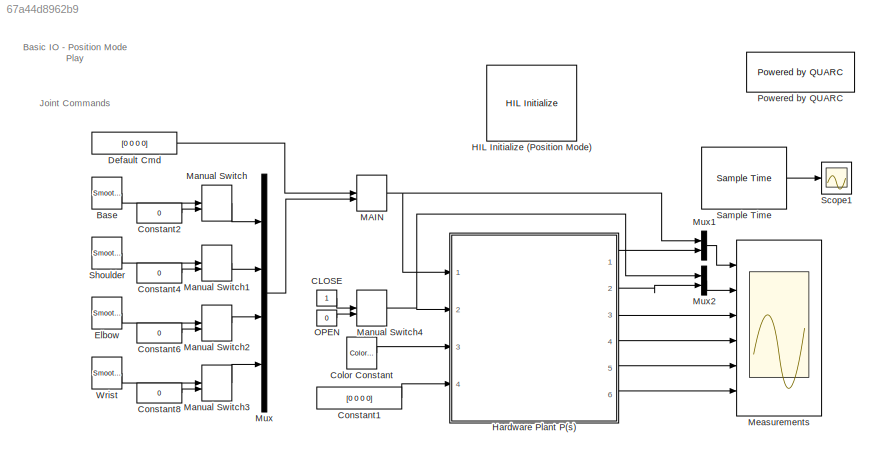
MODEL slx_67a44d8962b9
KIND model
CONFIG AbsTol = auto
CONFIG EnableMultiTasking = on
CONFIG FixedStep = 1/500
CONFIG MaxStep = auto
CONFIG MinStep = auto
CONFIG RelTol = 1e-3
CONFIG SampleTimeConstraint = Unconstrained
CONFIG SolverName = ode4
CONFIG StartTime = 0.0
CONFIG StopTime = inf
BLOCK [Constant]  OPEN
  Value = 0
BLOCK [Reference] Base  REF=quarc_library/Sources/Signals/Smooth Signal
Generator
  Ports = [0, 1]
  SourceBlock = quarc_library/Sources/Signals/Smooth Signal\nGenerator
  SourceProductName = QUARC Targets
  SourceType = Smooth Signal Generator
BLOCK [Constant] CLOSE 
  NameLocation = top
BLOCK [Reference] Color Constant  REF=quarc_library/Sources/Signals/Color Constant
  Ports = [0, 1]
  SourceBlock = quarc_library/Sources/Signals/Color Constant
  SourceProductName = QUARC Targets
  SourceType = Color Constant
BLOCK [Constant] Constant1
  Value = [0 0 0 0]
BLOCK [Constant] Constant2
  Value = 0
BLOCK [Constant] Constant4
  Value = 0
BLOCK [Constant] Constant6
  Value = 0
BLOCK [Constant] Constant8
  Value = 0
BLOCK [Constant] Default Cmd
  Value = [0 0 0 0]
BLOCK [Reference] Elbow  REF=quarc_library/Sources/Signals/Smooth Signal
Generator
  Ports = [0, 1]
  SourceBlock = quarc_library/Sources/Signals/Smooth Signal\nGenerator
  SourceProductName = QUARC Targets
  SourceType = Smooth Signal Generator
BLOCK [Reference] HIL Initialize (Position Mode)  REF=quarc_library/Data Acquisition/Generic/Configuration/HIL Initialize
  AttributesFormatString = %<object_name> (%<board_type>-%<board_number>)
  Ports = []
  SourceBlock = quarc_library/Data Acquisition/Generic/Configuration/HIL Initialize
  SourceProductName = QUARC Targets
  SourceType = HIL Initialize
  UserDataPersistent = on
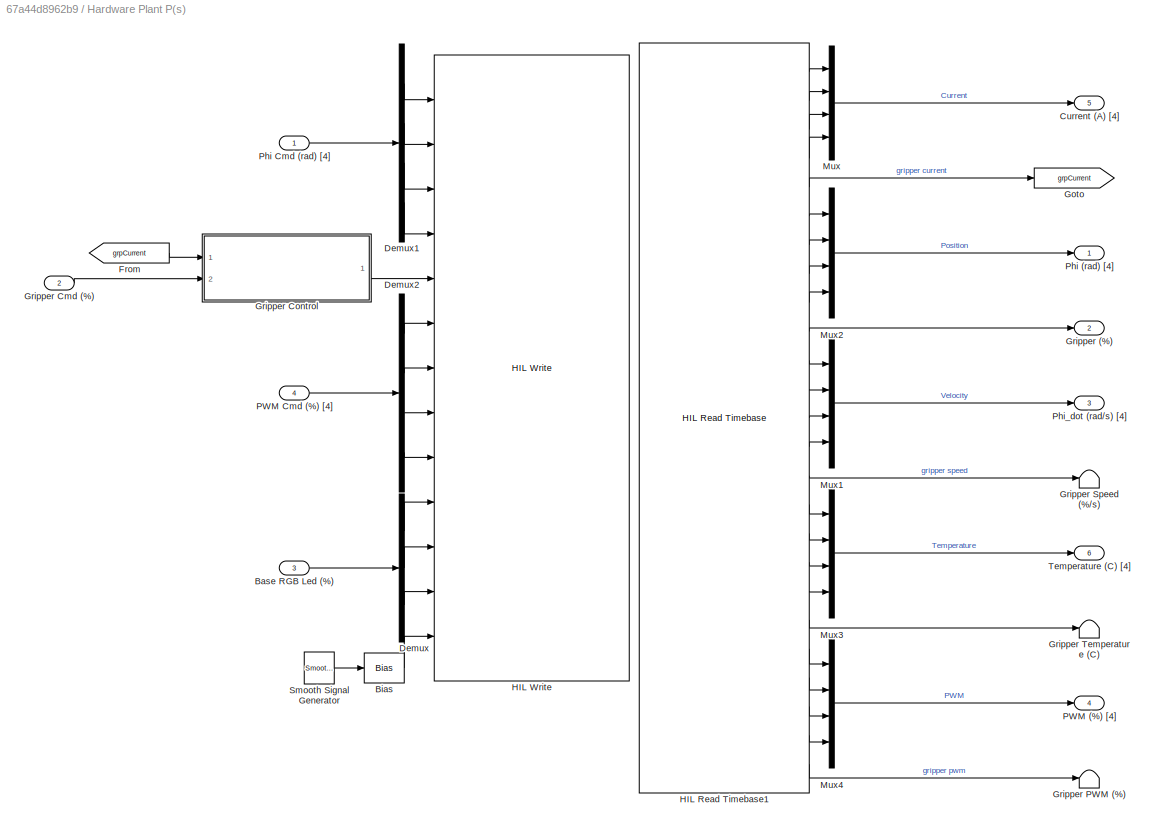
BLOCK [SubSystem] Hardware Plant P(s)
  Permissions = NoReadOrWrite
  Ports = [4, 6]
BLOCK [Inport] Hardware Plant P(s)/Base RGB Led (%)
  Port = 3
BLOCK [Bias] Hardware Plant P(s)/Bias
  Bias = 0.5
  SaturateOnIntegerOverflow = off
BLOCK [Outport] Hardware Plant P(s)/Current (A) [4]
  Port = 5
  VectorParamsAs1DForOutWhenUnconnected = off
BLOCK [Demux] Hardware Plant P(s)/Demux
  Outputs = 3
  Ports = [1, 3]
BLOCK [Demux] Hardware Plant P(s)/Demux1
  Ports = [1, 4]
BLOCK [Demux] Hardware Plant P(s)/Demux2
  Ports = [1, 4]
BLOCK [From] Hardware Plant P(s)/From
  GotoTag = grpCurrent
BLOCK [Goto] Hardware Plant P(s)/Goto
  GotoTag = grpCurrent
BLOCK [Outport] Hardware Plant P(s)/Gripper (%)
  Port = 2
  VectorParamsAs1DForOutWhenUnconnected = off
BLOCK [Inport] Hardware Plant P(s)/Gripper Cmd (%)
  Port = 2
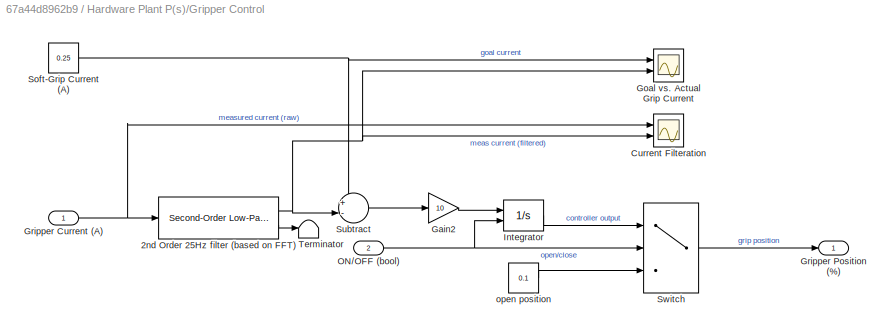
BLOCK [SubSystem] Hardware Plant P(s)/Gripper Control
  Ports = [2, 1]
BLOCK [Reference] Hardware Plant P(s)/Gripper Control/2nd Order 25Hz filter (based on FFT)  REF=quarc_library/Continuous/Second-Order
Low-Pass Filter
  Ports = [1, 2]
  SourceBlock = quarc_library/Continuous/Second-Order\nLow-Pass Filter
  SourceProductName = QUARC Targets
  SourceType = Second-Order Low-Pass Filter
BLOCK [Scope] Hardware Plant P(s)/Gripper Control/Current Filteration
  Floating = off
  NameLocation = top
  NumInputPorts = 2
  Ports = [2]
  ScopeSpecificationString = Simulink.scopes.TimeScopeBlockCfg('CurrentConfiguration', extmgr.ConfigurationSet(extmgr.Configuration('Core','General UI',true),extmgr.Configuration('Core','Source UI',true),extmgr.Configuration('Sources','WiredSimulink',true,'DataLoggingVariableName','ScopeData5'),extmgr.Configuration('Visuals','Time Domain',true,'SerializedDisplays',{struct('MinYLimReal','-0.01447','MaxYLimReal','0.62651','YLab...<+1429ch>
BLOCK [Gain] Hardware Plant P(s)/Gripper Control/Gain2
  Gain = 10
BLOCK [Scope] Hardware Plant P(s)/Gripper Control/Goal vs. Actual Grip Current
  Floating = off
  NameLocation = top
  NumInputPorts = 2
  Ports = [2]
  ScopeSpecificationString = Simulink.scopes.TimeScopeBlockCfg('CurrentConfiguration', extmgr.ConfigurationSet(extmgr.Configuration('Core','General UI',true),extmgr.Configuration('Core','Source UI',true),extmgr.Configuration('Sources','WiredSimulink',true,'DataLoggingVariableName','ScopeData4'),extmgr.Configuration('Visuals','Time Domain',true,'SerializedDisplays',{struct('MinYLimReal','0.00229','MaxYLimReal','0.27702','YLabe...<+1426ch>
BLOCK [Inport] Hardware Plant P(s)/Gripper Control/Gripper Current (A)
BLOCK [Outport] Hardware Plant P(s)/Gripper Control/Gripper Position (%)
  VectorParamsAs1DForOutWhenUnconnected = off
BLOCK [Integrator] Hardware Plant P(s)/Gripper Control/Integrator
  ExternalReset = either
  InitialCondition = 0.1
  LimitOutput = on
  LowerSaturationLimit = 0.1
  Ports = [2, 1]
  UpperSaturationLimit = 0.9
BLOCK [Inport] Hardware Plant P(s)/Gripper Control/ON//OFF (bool)
  Port = 2
BLOCK [Constant] Hardware Plant P(s)/Gripper Control/Soft-Grip Current (A)
  Value = 0.25
BLOCK [Sum] Hardware Plant P(s)/Gripper Control/Subtract
  Inputs = +-|
  Ports = [2, 1]
BLOCK [Switch] Hardware Plant P(s)/Gripper Control/Switch
  Criteria = u2 > Threshold
  InputSameDT = off
  SaturateOnIntegerOverflow = off
BLOCK [Terminator] Hardware Plant P(s)/Gripper Control/Terminator
BLOCK [Constant] Hardware Plant P(s)/Gripper Control/open position
  Value = 0.1
BLOCK [Terminator] Hardware Plant P(s)/Gripper PWM (%)
BLOCK [Terminator] Hardware Plant P(s)/Gripper Speed (%//s)
BLOCK [Terminator] Hardware Plant P(s)/Gripper Temperature (C)
BLOCK [Reference] Hardware Plant P(s)/HIL Read Timebase1  REF=quarc_library/Data Acquisition/Generic/Timebases/HIL Read
Timebase
  AttributesFormatString = (%<object_name>)
  Ports = [0, 25]
  SourceBlock = quarc_library/Data Acquisition/Generic/Timebases/HIL Read\nTimebase
  SourceProductName = QUARC Targets
  SourceType = HIL Read Timebase
  UserDataPersistent = on
BLOCK [Reference] Hardware Plant P(s)/HIL Write  REF=quarc_library/Data Acquisition/Generic/Immediate I//O/HIL Write
  AttributesFormatString = (%<object_name>)
  Ports = [13]
  SourceBlock = quarc_library/Data Acquisition/Generic/Immediate I//O/HIL Write
  SourceProductName = QUARC Targets
  SourceType = HIL Write
  UserDataPersistent = on
BLOCK [Mux] Hardware Plant P(s)/Mux
  DisplayOption = bar
  Ports = [4, 1]
BLOCK [Mux] Hardware Plant P(s)/Mux1
  DisplayOption = bar
  Ports = [4, 1]
BLOCK [Mux] Hardware Plant P(s)/Mux2
  DisplayOption = bar
  Ports = [4, 1]
BLOCK [Mux] Hardware Plant P(s)/Mux3
  DisplayOption = bar
  Ports = [4, 1]
BLOCK [Mux] Hardware Plant P(s)/Mux4
  DisplayOption = bar
  Ports = [4, 1]
BLOCK [Outport] Hardware Plant P(s)/PWM (%) [4]
  Port = 4
  VectorParamsAs1DForOutWhenUnconnected = off
BLOCK [Inport] Hardware Plant P(s)/PWM Cmd (%) [4]
  Port = 4
BLOCK [Outport] Hardware Plant P(s)/Phi (rad) [4]
  VectorParamsAs1DForOutWhenUnconnected = off
BLOCK [Inport] Hardware Plant P(s)/Phi Cmd (rad) [4]
BLOCK [Outport] Hardware Plant P(s)/Phi_dot (rad//s) [4]
  Port = 3
  VectorParamsAs1DForOutWhenUnconnected = off
BLOCK [Reference] Hardware Plant P(s)/Smooth Signal Generator  REF=quarc_library/Sources/Signals/Smooth Signal
Generator
  Ports = [0, 1]
  SourceBlock = quarc_library/Sources/Signals/Smooth Signal\nGenerator
  SourceProductName = QUARC Targets
  SourceType = Smooth Signal Generator
BLOCK [Outport] Hardware Plant P(s)/Temperature (C) [4]
  Port = 6
  VectorParamsAs1DForOutWhenUnconnected = off
BLOCK [ManualSwitch] MAIN
BLOCK [ManualSwitch] Manual Switch
  CurrentSetting = 0
BLOCK [ManualSwitch] Manual Switch1
  CurrentSetting = 0
BLOCK [ManualSwitch] Manual Switch2
  CurrentSetting = 0
BLOCK [ManualSwitch] Manual Switch3
  CurrentSetting = 0
BLOCK [ManualSwitch] Manual Switch4
  CurrentSetting = 0
BLOCK [Scope] Measurements
  Floating = off
  NumInputPorts = 6
  Ports = [6]
  ScopeSpecificationString = Simulink.scopes.TimeScopeBlockCfg('CurrentConfiguration', extmgr.ConfigurationSet(extmgr.Configuration('Core','General UI',true),extmgr.Configuration('Core','Source UI',true),extmgr.Configuration('Sources','WiredSimulink',true,'DataLoggingVariableName','ScopeData1'),extmgr.Configuration('Visuals','Time Domain',true,'SerializedDisplays',{struct('MinYLimReal','-0.01419','MaxYLimReal','0.07403','YLab...<+5322ch>
BLOCK [Mux] Mux
  DisplayOption = bar
  Ports = [4, 1]
BLOCK [Mux] Mux1
  DisplayOption = bar
  Inputs = 2
  Ports = [2, 1]
BLOCK [Mux] Mux2
  DisplayOption = bar
  Inputs = 2
  Ports = [2, 1]
BLOCK [Reference] Powered by QUARC  REF=quarc_library/Logos/Powered by QUARC
  Ports = []
  SourceBlock = quarc_library/Logos/Powered by QUARC
  SourceProductName = QUARC Targets
  SourceType = Powered by QUARC
BLOCK [Reference] Sample Time  REF=quarc_library/Sources/Time/Sample Time
  Ports = [0, 1]
  Priority = -99
  SourceBlock = quarc_library/Sources/Time/Sample Time
  SourceProductName = QUARC Targets
  SourceType = Sample Time
BLOCK [Scope] Scope1
  Floating = off
  NumInputPorts = 1
  Ports = [1]
  ScopeSpecificationString = Simulink.scopes.TimeScopeBlockCfg('CurrentConfiguration', extmgr.ConfigurationSet(extmgr.Configuration('Core','General UI',true),extmgr.Configuration('Core','Source UI',true),extmgr.Configuration('Sources','WiredSimulink',true,'DataLoggingVariableName','ScopeData1'),extmgr.Configuration('Visuals','Time Domain',true,'SerializedDisplays',{struct('MinYLimReal','0.00125','MaxYLimReal','0.00274','YLabe...<+1395ch>
BLOCK [Reference] Shoulder  REF=quarc_library/Sources/Signals/Smooth Signal
Generator
  Ports = [0, 1]
  SourceBlock = quarc_library/Sources/Signals/Smooth Signal\nGenerator
  SourceProductName = QUARC Targets
  SourceType = Smooth Signal Generator
BLOCK [Reference] Wrist  REF=quarc_library/Sources/Signals/Smooth Signal
Generator
  Ports = [0, 1]
  SourceBlock = quarc_library/Sources/Signals/Smooth Signal\nGenerator
  SourceProductName = QUARC Targets
  SourceType = Smooth Signal Generator
ANNOTATION (root): Basic IO - Position Mode Play
ANNOTATION (root): Joint Commands
LINE  OPEN:1 -> Manual Switch4:2
LINE Base:1 -> Manual Switch:1
LINE CLOSE :1 -> Manual Switch4:1
LINE Color Constant:1 -> Hardware Plant P(s):3
LINE Constant1:1 -> Hardware Plant P(s):4
LINE Constant2:1 -> Manual Switch:2
LINE Constant4:1 -> Manual Switch1:2
LINE Constant6:1 -> Manual Switch2:2
LINE Constant8:1 -> Manual Switch3:2
LINE Default Cmd:1 -> MAIN:1
LINE Elbow:1 -> Manual Switch2:1
LINE Hardware Plant P(s)/Base RGB Led (%):1 -> Hardware Plant P(s)/Demux:1
LINE Hardware Plant P(s)/Bias:1 -> Hardware Plant P(s)/HIL Write:13
LINE Hardware Plant P(s)/Demux1:1 -> Hardware Plant P(s)/HIL Write:1
LINE Hardware Plant P(s)/Demux1:2 -> Hardware Plant P(s)/HIL Write:2
LINE Hardware Plant P(s)/Demux1:3 -> Hardware Plant P(s)/HIL Write:3
LINE Hardware Plant P(s)/Demux1:4 -> Hardware Plant P(s)/HIL Write:4
LINE Hardware Plant P(s)/Demux2:1 -> Hardware Plant P(s)/HIL Write:6
LINE Hardware Plant P(s)/Demux2:2 -> Hardware Plant P(s)/HIL Write:7
LINE Hardware Plant P(s)/Demux2:3 -> Hardware Plant P(s)/HIL Write:8
LINE Hardware Plant P(s)/Demux2:4 -> Hardware Plant P(s)/HIL Write:9
LINE Hardware Plant P(s)/Demux:1 -> Hardware Plant P(s)/HIL Write:10
LINE Hardware Plant P(s)/Demux:2 -> Hardware Plant P(s)/HIL Write:11
LINE Hardware Plant P(s)/Demux:3 -> Hardware Plant P(s)/HIL Write:12
LINE Hardware Plant P(s)/From:1 -> Hardware Plant P(s)/Gripper Control:1
LINE Hardware Plant P(s)/Gripper Cmd (%):1 -> Hardware Plant P(s)/Gripper Control:2
NET Hardware Plant P(s)/Gripper Control/2nd Order 25Hz filter (based on FFT):1 -> Hardware Plant P(s)/Gripper Control/Current Filteration:2, Hardware Plant P(s)/Gripper Control/Goal vs. Actual Grip Current:2, Hardware Plant P(s)/Gripper Control/Subtract:2
LINE Hardware Plant P(s)/Gripper Control/2nd Order 25Hz filter (based on FFT):2 -> Hardware Plant P(s)/Gripper Control/Terminator:1
LINE Hardware Plant P(s)/Gripper Control/Gain2:1 -> Hardware Plant P(s)/Gripper Control/Integrator:1
NET Hardware Plant P(s)/Gripper Control/Gripper Current (A):1 -> Hardware Plant P(s)/Gripper Control/2nd Order 25Hz filter (based on FFT):1, Hardware Plant P(s)/Gripper Control/Current Filteration:1
LINE Hardware Plant P(s)/Gripper Control/Integrator:1 -> Hardware Plant P(s)/Gripper Control/Switch:1
NET Hardware Plant P(s)/Gripper Control/ON//OFF (bool):1 -> Hardware Plant P(s)/Gripper Control/Integrator:2, Hardware Plant P(s)/Gripper Control/Switch:2
NET Hardware Plant P(s)/Gripper Control/Soft-Grip Current (A):1 -> Hardware Plant P(s)/Gripper Control/Goal vs. Actual Grip Current:1, Hardware Plant P(s)/Gripper Control/Subtract:1
LINE Hardware Plant P(s)/Gripper Control/Subtract:1 -> Hardware Plant P(s)/Gripper Control/Gain2:1
LINE Hardware Plant P(s)/Gripper Control/Switch:1 -> Hardware Plant P(s)/Gripper Control/Gripper Position (%):1
LINE Hardware Plant P(s)/Gripper Control/open position:1 -> Hardware Plant P(s)/Gripper Control/Switch:3
LINE Hardware Plant P(s)/Gripper Control:1 -> Hardware Plant P(s)/HIL Write:5
LINE Hardware Plant P(s)/HIL Read Timebase1:1 -> Hardware Plant P(s)/Mux:1
LINE Hardware Plant P(s)/HIL Read Timebase1:10 -> Hardware Plant P(s)/Gripper (%):1
LINE Hardware Plant P(s)/HIL Read Timebase1:11 -> Hardware Plant P(s)/Mux1:1
LINE Hardware Plant P(s)/HIL Read Timebase1:12 -> Hardware Plant P(s)/Mux1:2
LINE Hardware Plant P(s)/HIL Read Timebase1:13 -> Hardware Plant P(s)/Mux1:3
LINE Hardware Plant P(s)/HIL Read Timebase1:14 -> Hardware Plant P(s)/Mux1:4
LINE Hardware Plant P(s)/HIL Read Timebase1:15 -> Hardware Plant P(s)/Gripper Speed (%//s):1
LINE Hardware Plant P(s)/HIL Read Timebase1:16 -> Hardware Plant P(s)/Mux3:1
LINE Hardware Plant P(s)/HIL Read Timebase1:17 -> Hardware Plant P(s)/Mux3:2
LINE Hardware Plant P(s)/HIL Read Timebase1:18 -> Hardware Plant P(s)/Mux3:3
LINE Hardware Plant P(s)/HIL Read Timebase1:19 -> Hardware Plant P(s)/Mux3:4
LINE Hardware Plant P(s)/HIL Read Timebase1:2 -> Hardware Plant P(s)/Mux:2
LINE Hardware Plant P(s)/HIL Read Timebase1:20 -> Hardware Plant P(s)/Gripper Temperature (C):1
LINE Hardware Plant P(s)/HIL Read Timebase1:21 -> Hardware Plant P(s)/Mux4:1
LINE Hardware Plant P(s)/HIL Read Timebase1:22 -> Hardware Plant P(s)/Mux4:2
LINE Hardware Plant P(s)/HIL Read Timebase1:23 -> Hardware Plant P(s)/Mux4:3
LINE Hardware Plant P(s)/HIL Read Timebase1:24 -> Hardware Plant P(s)/Mux4:4
LINE Hardware Plant P(s)/HIL Read Timebase1:25 -> Hardware Plant P(s)/Gripper PWM (%):1
LINE Hardware Plant P(s)/HIL Read Timebase1:3 -> Hardware Plant P(s)/Mux:3
LINE Hardware Plant P(s)/HIL Read Timebase1:4 -> Hardware Plant P(s)/Mux:4
LINE Hardware Plant P(s)/HIL Read Timebase1:5 -> Hardware Plant P(s)/Goto:1
LINE Hardware Plant P(s)/HIL Read Timebase1:6 -> Hardware Plant P(s)/Mux2:1
LINE Hardware Plant P(s)/HIL Read Timebase1:7 -> Hardware Plant P(s)/Mux2:2
LINE Hardware Plant P(s)/HIL Read Timebase1:8 -> Hardware Plant P(s)/Mux2:3
LINE Hardware Plant P(s)/HIL Read Timebase1:9 -> Hardware Plant P(s)/Mux2:4
LINE Hardware Plant P(s)/Mux1:1 -> Hardware Plant P(s)/Phi_dot (rad//s) [4]:1
LINE Hardware Plant P(s)/Mux2:1 -> Hardware Plant P(s)/Phi (rad) [4]:1
LINE Hardware Plant P(s)/Mux3:1 -> Hardware Plant P(s)/Temperature (C) [4]:1
LINE Hardware Plant P(s)/Mux4:1 -> Hardware Plant P(s)/PWM (%) [4]:1
LINE Hardware Plant P(s)/Mux:1 -> Hardware Plant P(s)/Current (A) [4]:1
LINE Hardware Plant P(s)/PWM Cmd (%) [4]:1 -> Hardware Plant P(s)/Demux2:1
LINE Hardware Plant P(s)/Phi Cmd (rad) [4]:1 -> Hardware Plant P(s)/Demux1:1
LINE Hardware Plant P(s)/Smooth Signal Generator:1 -> Hardware Plant P(s)/Bias:1
LINE Hardware Plant P(s):1 -> Mux1:2
LINE Hardware Plant P(s):2 -> Mux2:2
LINE Hardware Plant P(s):3 -> Measurements:3
LINE Hardware Plant P(s):4 -> Measurements:4
LINE Hardware Plant P(s):5 -> Measurements:5
LINE Hardware Plant P(s):6 -> Measurements:6
NET MAIN:1 -> Hardware Plant P(s):1, Mux1:1
LINE Manual Switch1:1 -> Mux:2
LINE Manual Switch2:1 -> Mux:3
LINE Manual Switch3:1 -> Mux:4
NET Manual Switch4:1 -> Hardware Plant P(s):2, Mux2:1
LINE Manual Switch:1 -> Mux:1
LINE Mux1:1 -> Measurements:1
LINE Mux2:1 -> Measurements:2
LINE Mux:1 -> MAIN:2
LINE Sample Time:1 -> Scope1:1
LINE Shoulder:1 -> Manual Switch1:1
LINE Wrist:1 -> Manual Switch3:1
note: NET lines group one-source signal fan-out (src -> all destinations, sorted); 1:1 wires keep LINE
